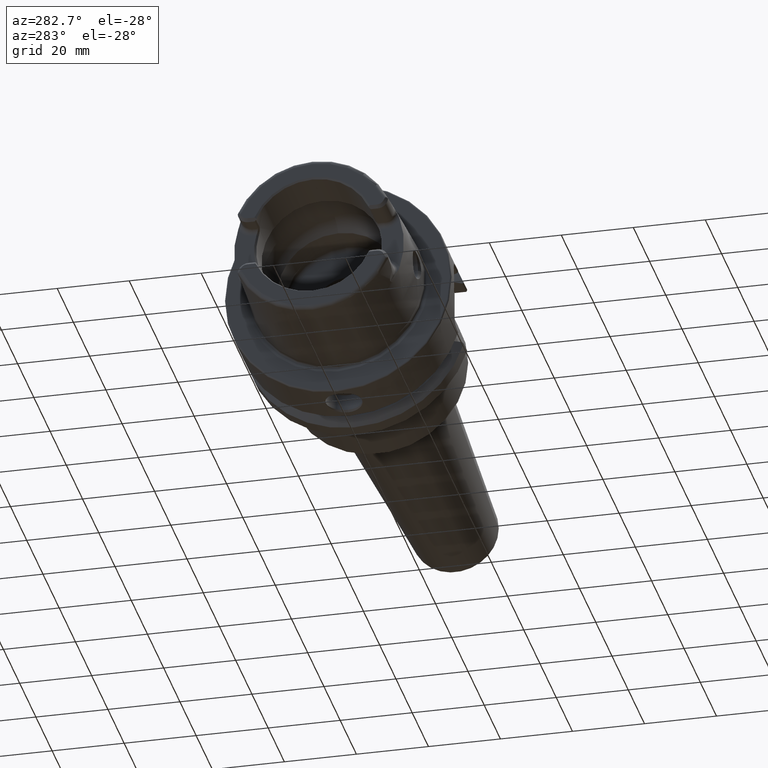
[diagram: clean part render]
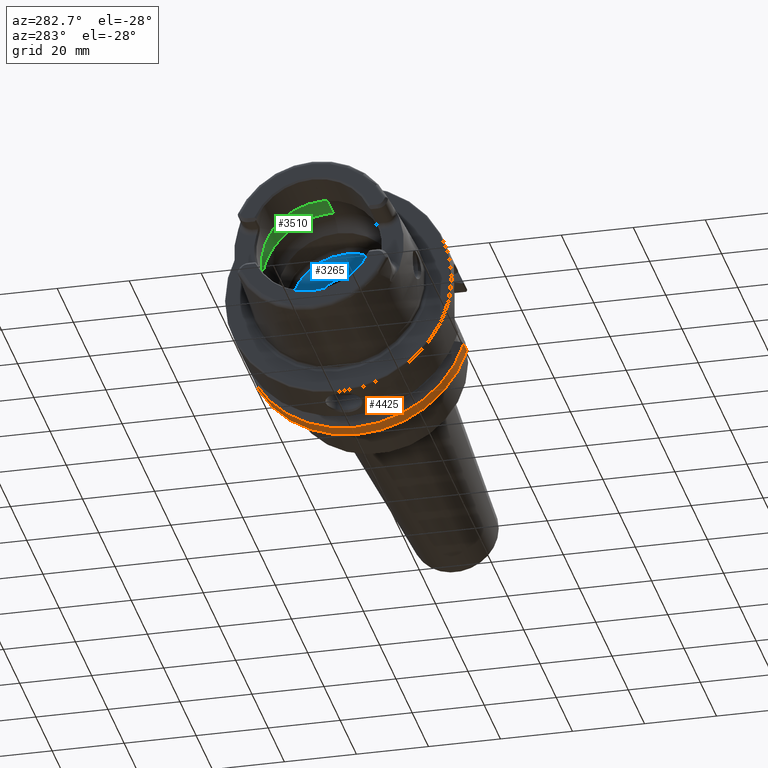
[diagram: same view with three faces highlighted in distinct colors, each labeled with its STEP entity id]
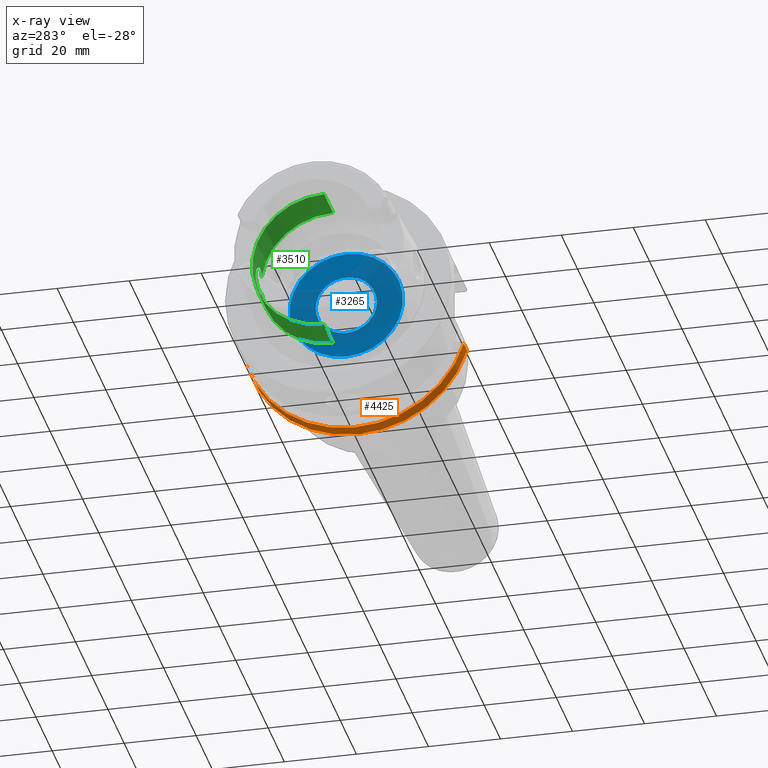
[diagram: x-ray of the same camera — body ghosted, the three highlighted faces saturated]
A machine part, auxiliary view with three faces highlighted in distinct colors.
The next image is the same camera in x-ray (body ghosted, the three faces saturated) — at least one of them is partly hidden behind the body in this view.
Their STEP definitions:

[orange] entity #4425 — the highlighted cylindrical surface (partial cylindrical patch) has radius 31.5 mm, axis along (1, 0, 0).
#1287=DIRECTION('',(1.E0,0.E0,1.034143222886E-14));
#1288=VECTOR('',#1287,4.122500945915E0);
#1289=CARTESIAN_POINT('',(2.137749905409E1,3.030257052423E1,-8.602570524226E0));
#1290=LINE('',#1289,#1288);
#1291=DIRECTION('',(1.E0,0.E0,0.E0));
#1292=VECTOR('',#1291,4.122500945915E0);
#1293=CARTESIAN_POINT('',(2.137749905409E1,-3.007314630073E1,
-9.373146300730E0));
#1294=LINE('',#1293,#1292);
#1403=CARTESIAN_POINT('',(2.55E1,0.E0,0.E0));
#1404=DIRECTION('',(-1.E0,0.E0,0.E0));
#1405=DIRECTION('',(0.E0,9.619863658485E-1,-2.730974769596E-1));
#1406=AXIS2_PLACEMENT_3D('',#1403,#1404,#1405);
#1413=CARTESIAN_POINT('',(2.55E1,-3.007314630073E1,-9.373146300730E0));
#1680=CARTESIAN_POINT('',(2.55E1,3.030257052423E1,-8.602570524226E0));
#2053=CARTESIAN_POINT('',(2.137749905409E1,3.030257052423E1,-8.602570524226E0));
#2083=CARTESIAN_POINT('',(2.137749905409E1,-3.007314630073E1,
-9.373146300730E0));
#2085=CARTESIAN_POINT('',(2.137749905409E1,0.E0,0.E0));
#2086=DIRECTION('',(1.E0,0.E0,0.E0));
#2087=DIRECTION('',(0.E0,-9.547030571660E-1,-2.975602000232E-1));
#2088=AXIS2_PLACEMENT_3D('',#2085,#2086,#2087);
#2836=VERTEX_POINT('',#2083);
#2858=VERTEX_POINT('',#2053);
#2876=VERTEX_POINT('',#1413);
#2880=VERTEX_POINT('',#1680);
#4410=CARTESIAN_POINT('',(0.E0,0.E0,0.E0));
#4411=DIRECTION('',(1.E0,0.E0,0.E0));
#4412=DIRECTION('',(0.E0,0.E0,1.E0));
#4413=AXIS2_PLACEMENT_3D('',#4410,#4411,#4412);
#4414=CYLINDRICAL_SURFACE('',#4413,3.15E1);
#4416=ORIENTED_EDGE('',*,*,#4415,.F.);
#4418=ORIENTED_EDGE('',*,*,#4417,.F.);
#4420=ORIENTED_EDGE('',*,*,#4419,.F.);
#4422=ORIENTED_EDGE('',*,*,#4421,.T.);
#4423=EDGE_LOOP('',(#4416,#4418,#4420,#4422));
#4424=FACE_OUTER_BOUND('',#4423,.F.);
#4425=ADVANCED_FACE('',(#4424),#4414,.T.);
#1407=CIRCLE('',#1406,3.15E1);
#2089=CIRCLE('',#2088,3.15E1);
#4415=EDGE_CURVE('',#2880,#2876,#1407,.T.);
#4417=EDGE_CURVE('',#2858,#2880,#1290,.T.);
#4419=EDGE_CURVE('',#2836,#2858,#2089,.T.);
#4421=EDGE_CURVE('',#2836,#2876,#1294,.T.);

[blue] entity #3265 — the highlighted planar face has unit normal (1, 0, 0).
#338=CARTESIAN_POINT('',(1.E1,0.E0,0.E0));
#339=DIRECTION('',(-1.E0,0.E0,0.E0));
#340=DIRECTION('',(0.E0,0.E0,-1.E0));
#341=AXIS2_PLACEMENT_3D('',#338,#339,#340);
#348=CARTESIAN_POINT('',(1.E1,0.E0,0.E0));
#349=DIRECTION('',(1.E0,0.E0,0.E0));
#350=DIRECTION('',(0.E0,0.E0,-1.E0));
#351=AXIS2_PLACEMENT_3D('',#348,#349,#350);
#353=CARTESIAN_POINT('',(1.E1,0.E0,0.E0));
#354=DIRECTION('',(-1.E0,0.E0,0.E0));
#355=DIRECTION('',(0.E0,1.E0,0.E0));
#356=AXIS2_PLACEMENT_3D('',#353,#354,#355);
#358=CARTESIAN_POINT('',(1.E1,0.E0,0.E0));
#359=DIRECTION('',(-1.E0,0.E0,0.E0));
#360=DIRECTION('',(0.E0,-1.E0,0.E0));
#361=AXIS2_PLACEMENT_3D('',#358,#359,#360);
#2519=CARTESIAN_POINT('',(1.E1,0.E0,-1.575E1));
#2520=CARTESIAN_POINT('',(1.E1,0.E0,1.575E1));
#2521=VERTEX_POINT('',#2519);
#2522=VERTEX_POINT('',#2520);
#2523=CARTESIAN_POINT('',(1.E1,8.5E0,0.E0));
#2524=CARTESIAN_POINT('',(1.E1,-8.5E0,0.E0));
#2525=VERTEX_POINT('',#2523);
#2526=VERTEX_POINT('',#2524);
#3250=CARTESIAN_POINT('',(1.E1,0.E0,0.E0));
#3251=DIRECTION('',(1.E0,0.E0,0.E0));
#3252=DIRECTION('',(0.E0,0.E0,1.E0));
#3253=AXIS2_PLACEMENT_3D('',#3250,#3251,#3252);
#3254=PLANE('',#3253);
#3255=ORIENTED_EDGE('',*,*,#3230,.F.);
#3256=ORIENTED_EDGE('',*,*,#3244,.T.);
#3257=EDGE_LOOP('',(#3255,#3256));
#3258=FACE_OUTER_BOUND('',#3257,.F.);
#3260=ORIENTED_EDGE('',*,*,#3259,.T.);
#3262=ORIENTED_EDGE('',*,*,#3261,.T.);
#3263=EDGE_LOOP('',(#3260,#3262));
#3264=FACE_BOUND('',#3263,.F.);
#3265=ADVANCED_FACE('',(#3258,#3264),#3254,.F.);
#342=CIRCLE('',#341,1.575E1);
#352=CIRCLE('',#351,1.575E1);
#357=CIRCLE('',#356,8.5E0);
#362=CIRCLE('',#361,8.5E0);
#3230=EDGE_CURVE('',#2521,#2522,#342,.T.);
#3244=EDGE_CURVE('',#2521,#2522,#352,.T.);
#3259=EDGE_CURVE('',#2525,#2526,#357,.T.);
#3261=EDGE_CURVE('',#2526,#2525,#362,.T.);

[green] entity #3510 — the highlighted cylindrical surface (partial cylindrical patch) has radius 20 mm, axis along (1, 0, 0).
#497=CARTESIAN_POINT('',(-6.25E0,1.983683432405E1,-2.549509756796E0));
#498=CARTESIAN_POINT('',(-6.412053249105E0,1.981436872154E1,-2.724306669752E0));
#499=CARTESIAN_POINT('',(-6.766283038869E0,1.976880152585E1,-3.043174584824E0));
#500=CARTESIAN_POINT('',(-7.437021749638E0,1.970321634602E1,-3.437832059909E0));
#501=CARTESIAN_POINT('',(-8.152676684205E0,1.965899391744E1,-3.678552226110E0));
#502=CARTESIAN_POINT('',(-8.900887994509E0,1.964074836162E1,-3.773595275991E0));
#503=CARTESIAN_POINT('',(-9.647982002938E0,1.965127008206E1,-3.719177177138E0));
#504=CARTESIAN_POINT('',(-1.038040066941E1,1.968954201551E1,-3.513815501315E0));
#505=CARTESIAN_POINT('',(-1.104729243051E1,1.974836703805E1,-3.171513422847E0));
#506=CARTESIAN_POINT('',(-1.163726074685E1,1.981912729168E1,-2.701011039733E0));
#507=CARTESIAN_POINT('',(-1.211813851842E1,1.988977616026E1,-2.127402050047E0));
#508=CARTESIAN_POINT('',(-1.247854943360E1,1.995021036686E1,-1.467027006737E0));
#509=CARTESIAN_POINT('',(-1.270027737553E1,1.999058859895E1,
-7.456987717207E-1));
#510=CARTESIAN_POINT('',(-1.275E1,1.99999999E1,-2.521013685529E-1));
#511=CARTESIAN_POINT('',(-1.275E1,1.99999999E1,0.E0));
#513=CARTESIAN_POINT('',(-6.25E0,0.E0,0.E0));
#514=DIRECTION('',(1.E0,0.E0,0.E0));
#515=DIRECTION('',(0.E0,0.E0,-1.E0));
#516=AXIS2_PLACEMENT_3D('',#513,#514,#515);
#518=CARTESIAN_POINT('',(-6.25E0,0.E0,0.E0));
#519=DIRECTION('',(1.E0,0.E0,0.E0));
#520=DIRECTION('',(0.E0,9.918417211620E-1,1.274754884772E-1));
#521=AXIS2_PLACEMENT_3D('',#518,#519,#520);
#523=CARTESIAN_POINT('',(-1.275E1,1.99999999E1,0.E0));
#524=CARTESIAN_POINT('',(-1.275E1,1.99999999E1,2.522499085260E-1));
#525=CARTESIAN_POINT('',(-1.270021633428E1,1.999057683853E1,7.460576467196E-1));
#526=CARTESIAN_POINT('',(-1.247839689009E1,1.995018418162E1,1.467360516411E0));
#527=CARTESIAN_POINT('',(-1.211800725292E1,1.988975364888E1,2.127612236E0));
#528=CARTESIAN_POINT('',(-1.163703767481E1,1.981910322290E1,2.701157287313E0));
#529=CARTESIAN_POINT('',(-1.104809586369E1,1.974845673600E1,3.170933053688E0));
#530=CARTESIAN_POINT('',(-1.038170311499E1,1.968964959960E1,3.513217405331E0));
#531=CARTESIAN_POINT('',(-9.650936081239E0,1.965137398590E1,3.718629939811E0));
#532=CARTESIAN_POINT('',(-8.903475487327E0,1.964074202939E1,3.773631892091E0));
#533=CARTESIAN_POINT('',(-8.157184233515E0,1.965882665966E1,3.679417749825E0));
#534=CARTESIAN_POINT('',(-7.442004779313E0,1.970279837136E1,3.440215689278E0));
#535=CARTESIAN_POINT('',(-6.767922365933E0,1.976858507722E1,3.044642999749E0));
#536=CARTESIAN_POINT('',(-6.412615640680E0,1.981429075664E1,2.724913287093E0));
#537=CARTESIAN_POINT('',(-6.25E0,1.983683432405E1,2.549509756796E0));
#592=DIRECTION('',(-1.E0,0.E0,0.E0));
#593=VECTOR('',#592,1.101397465395E1);
#594=CARTESIAN_POINT('',(-6.25E0,0.E0,1.99999999E1));
#595=LINE('',#594,#593);
#596=DIRECTION('',(-1.E0,0.E0,0.E0));
#597=VECTOR('',#596,1.101397465395E1);
#598=CARTESIAN_POINT('',(-6.25E0,0.E0,-1.99999999E1));
#599=LINE('',#598,#597);
#618=CARTESIAN_POINT('',(-1.726397465395E1,0.E0,0.E0));
#619=DIRECTION('',(1.E0,0.E0,0.E0));
#620=DIRECTION('',(0.E0,0.E0,-1.E0));
#621=AXIS2_PLACEMENT_3D('',#618,#619,#620);
#2499=CARTESIAN_POINT('',(-1.726397465395E1,0.E0,-1.99999999E1));
#2500=CARTESIAN_POINT('',(-1.726397465395E1,0.E0,1.99999999E1));
#2501=VERTEX_POINT('',#2499);
#2502=VERTEX_POINT('',#2500);
#2511=CARTESIAN_POINT('',(-6.25E0,0.E0,-1.99999999E1));
#2512=VERTEX_POINT('',#2511);
#2513=CARTESIAN_POINT('',(-6.25E0,0.E0,1.99999999E1));
#2514=VERTEX_POINT('',#2513);
#2802=VERTEX_POINT('',#497);
#2803=VERTEX_POINT('',#511);
#2804=VERTEX_POINT('',#537);
#3491=CARTESIAN_POINT('',(0.E0,0.E0,0.E0));
#3492=DIRECTION('',(1.E0,0.E0,0.E0));
#3493=DIRECTION('',(0.E0,0.E0,1.E0));
#3494=AXIS2_PLACEMENT_3D('',#3491,#3492,#3493);
#3495=CYLINDRICAL_SURFACE('',#3494,1.99999999E1);
#3496=ORIENTED_EDGE('',*,*,#3410,.F.);
#3498=ORIENTED_EDGE('',*,*,#3497,.F.);
#3500=ORIENTED_EDGE('',*,*,#3499,.T.);
#3502=ORIENTED_EDGE('',*,*,#3501,.T.);
#3504=ORIENTED_EDGE('',*,*,#3503,.F.);
#3506=ORIENTED_EDGE('',*,*,#3505,.F.);
#3507=ORIENTED_EDGE('',*,*,#3468,.F.);
#3508=EDGE_LOOP('',(#3496,#3498,#3500,#3502,#3504,#3506,#3507));
#3509=FACE_OUTER_BOUND('',#3508,.F.);
#3510=ADVANCED_FACE('',(#3509),#3495,.F.);
#512=B_SPLINE_CURVE_WITH_KNOTS('',3,(#497,#498,#499,#500,#501,#502,#503,#504,
#505,#506,#507,#508,#509,#510,#511),.UNSPECIFIED.,.F.,.F.,(4,1,1,1,1,1,1,1,1,1,
1,1,4),(0.E0,8.333333333333E-2,1.666666666667E-1,2.5E-1,3.333333333333E-1,
4.166666666667E-1,5.E-1,5.833333333333E-1,6.666666666667E-1,7.5E-1,
8.333333333333E-1,9.166666666667E-1,1.E0),.UNSPECIFIED.);
#517=CIRCLE('',#516,1.99999999E1);
#522=CIRCLE('',#521,1.99999999E1);
#538=B_SPLINE_CURVE_WITH_KNOTS('',3,(#523,#524,#525,#526,#527,#528,#529,#530,
#531,#532,#533,#534,#535,#536,#537),.UNSPECIFIED.,.F.,.F.,(4,1,1,1,1,1,1,1,1,1,
1,1,4),(0.E0,8.333333333333E-2,1.666666666667E-1,2.5E-1,3.333333333333E-1,
4.166666666667E-1,5.E-1,5.833333333333E-1,6.666666666667E-1,7.5E-1,
8.333333333333E-1,9.166666666667E-1,1.E0),.UNSPECIFIED.);
#622=CIRCLE('',#621,1.99999999E1);
#3410=EDGE_CURVE('',#2802,#2803,#512,.T.);
#3468=EDGE_CURVE('',#2803,#2804,#538,.T.);
#3497=EDGE_CURVE('',#2512,#2802,#517,.T.);
#3499=EDGE_CURVE('',#2512,#2501,#599,.T.);
#3501=EDGE_CURVE('',#2501,#2502,#622,.T.);
#3503=EDGE_CURVE('',#2514,#2502,#595,.T.);
#3505=EDGE_CURVE('',#2804,#2514,#522,.T.);